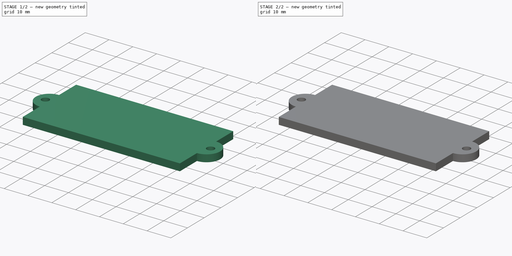
[diagram: build sequence overview — one tinted view per stage of 2, left to right]
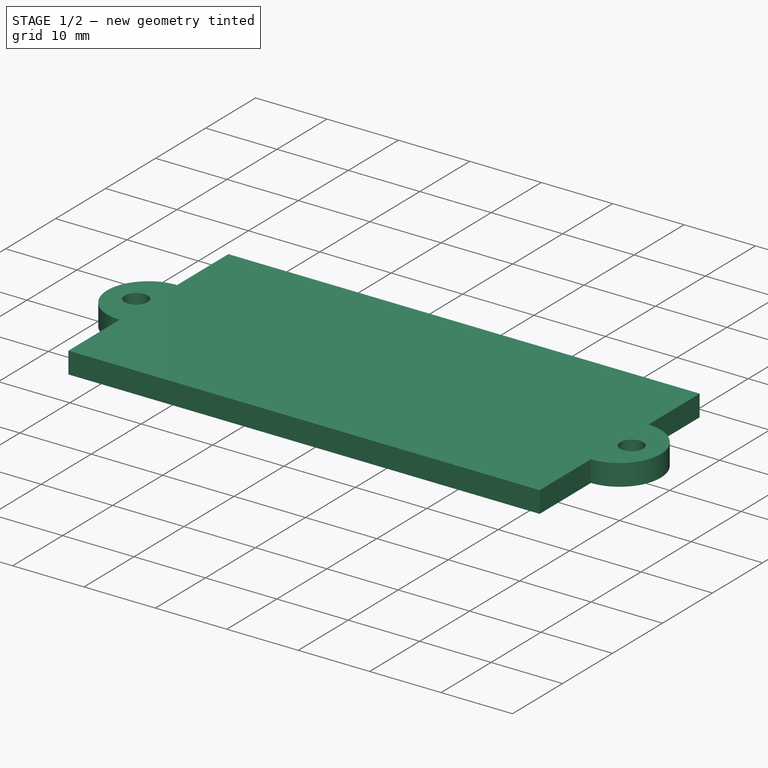
[diagram: stage 1 of 2 — iso view after this stage's code; geometry added in this stage tinted green]
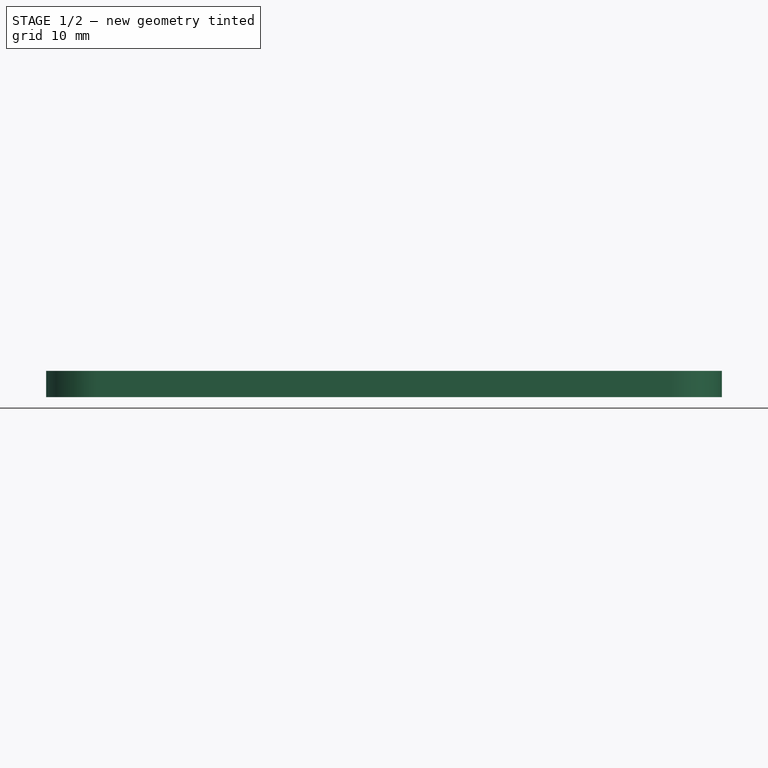
[diagram: stage 1 of 2 — front view after this stage's code; geometry added in this stage tinted green]
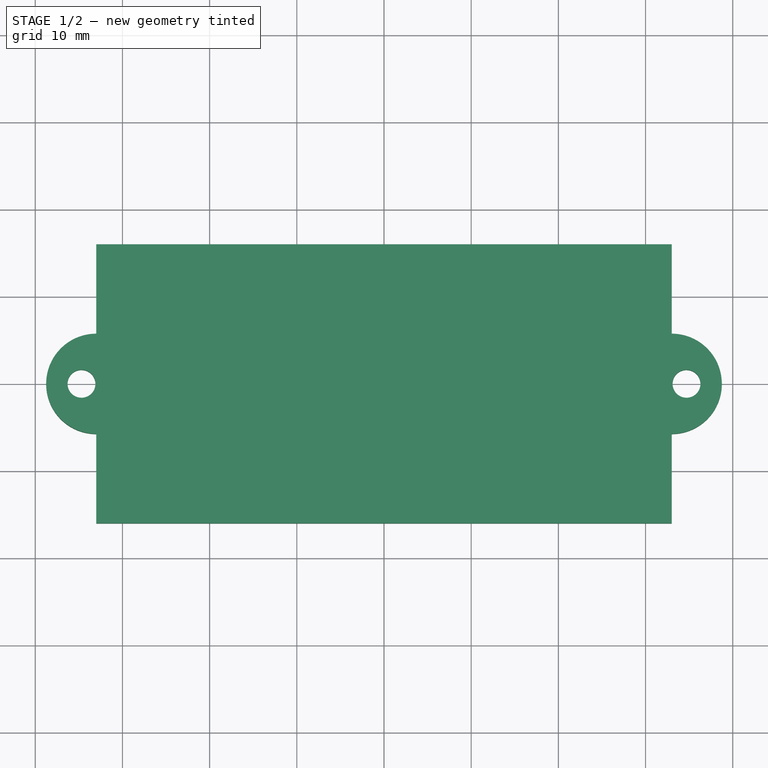
[diagram: stage 1 of 2 — top view after this stage's code; geometry added in this stage tinted green]
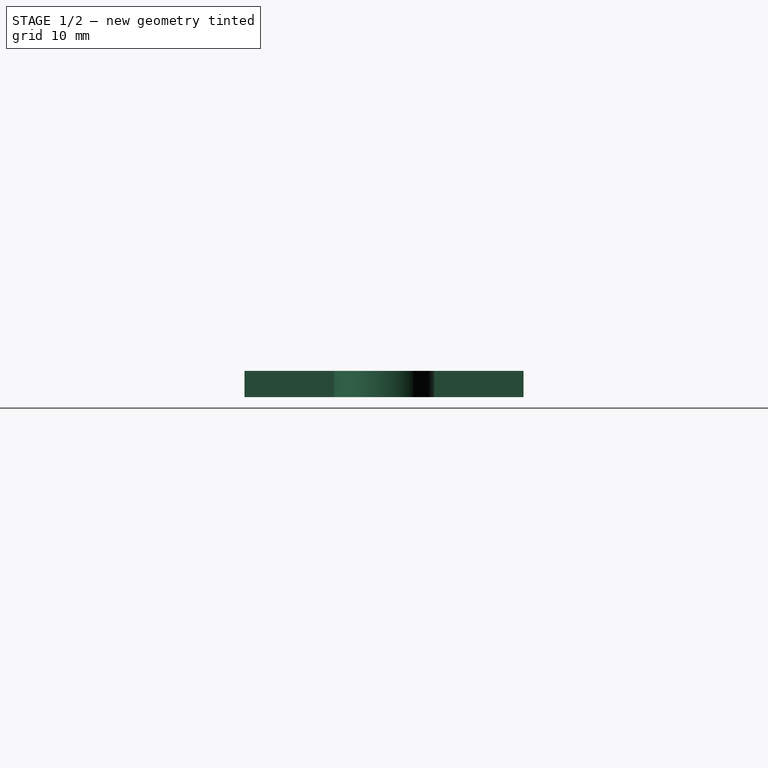
[diagram: stage 1 of 2 — right view after this stage's code; geometry added in this stage tinted green]
FCSTD DOCUMENT  (FreeCAD 0.20R29603 (Git))
Label: poklopac_zasebne kutije
License: All rights reserved
LicenseURL: http://en.wikipedia.org/wiki/All_rights_reserved
objects: Sketcher::SketchObject×2, PartDesign::Pad×1, PartDesign::Pocket×1, PartDesign::Body×1
note: 7 computed .brp shape members not serialized (recipe doc carries the construction recipe); baked Part::Feature solids carry a one-line shape summary decoded from their .brp

FEATURE [Sketcher::SketchObject] Sketch
  FullyConstrained = true
  MapMode = 5
  Support = -> [XY_Plane]
  sketch-geometry (12):
    g0: LineSegment StartX=-33 StartY=16 StartZ=0 EndX=33 EndY=16 EndZ=0
    g1: LineSegment StartX=33 StartY=16 StartZ=0 EndX=33 EndY=5.75 EndZ=0
    g2: LineSegment StartX=33 StartY=-16 StartZ=0 EndX=-33 EndY=-16 EndZ=0
    g3: LineSegment StartX=-33 StartY=-16 StartZ=0 EndX=-33 EndY=-5.75 EndZ=0
    g4: ArcOfCircle CenterX=-33 CenterY=0 CenterZ=0 NormalX=0 NormalY=0 NormalZ=1 AngleXU=0 Radius=5.75 StartAngle=1.5708 EndAngle=4.71239
    g5: ArcOfCircle CenterX=33 CenterY=0 CenterZ=0 NormalX=0 NormalY=0 NormalZ=1 AngleXU=0 Radius=5.75 StartAngle=4.71239 EndAngle=7.85398
    g6: Circle CenterX=-34.7 CenterY=0 CenterZ=0 NormalX=0 NormalY=0 NormalZ=1 AngleXU=0 Radius=1.6
    g7: Circle CenterX=34.7 CenterY=0 CenterZ=0 NormalX=0 NormalY=0 NormalZ=1 AngleXU=0 Radius=1.6
    g8: LineSegment StartX=-33 StartY=5.75 StartZ=0 EndX=-33 EndY=16 EndZ=0
    g9: LineSegment StartX=-33 StartY=-5.75 StartZ=0 EndX=-33 EndY=5.75 EndZ=0
    g10: LineSegment StartX=33 StartY=-5.75 StartZ=0 EndX=33 EndY=-16 EndZ=0
    g11: LineSegment StartX=33 StartY=5.75 StartZ=0 EndX=33 EndY=-5.75 EndZ=0
  constraints (35):
    c: Coincident(g0,g1)
    c: Coincident(g10,g2)
    c: Coincident(g2,g3)
    c: Coincident(g8,g0)
    c: Horizontal(g0)
    c: Vertical(g3)
    c: Symmetric(g2,g10,g-2)
    c: Symmetric(g10,g0,g-1)
    c: DistanceY(g10,g1) = 32
    c: DistanceX(g0,g0) = 66
    c: PointOnObject(g4,g-1)
    c: PointOnObject(g4,g3)
    c: Diameter(g4) = 11.5
    c: PointOnObject(g5,g-1)
    c: PointOnObject(g5,g1)
    c: Equal(g5,g4)
    c: PointOnObject(g6,g-1)
    c: PointOnObject(g7,g-1)
    c: Equal(g7,g6)
    c: Diameter(g6) = 3.2
    c: DistanceX(g6,g7) = 69.4
    c: DistanceX(g6,g0) = 1.7
    c: DistanceY(g4,g-1) = 5.75
    c: Coincident(g3,g4)
    c: Coincident(g8,g4)
    c: Vertical(g8)
    c: Coincident(g9,g3)
    c: Coincident(g9,g4)
    c: PointOnObject(g4,g9)
    c: Coincident(g1,g5)
    c: Coincident(g10,g5)
    c: Vertical(g1)
    c: Vertical(g10)
    c: Coincident(g11,g1)
    c: Coincident(g11,g5)
FEATURE [PartDesign::Pad] Pad
  Direction = (0,0,1)
  Length = 3
  Length2 = 10
  Profile = -> Sketch
  ReferenceAxis = -> Sketch [N_Axis]
  Type = 0
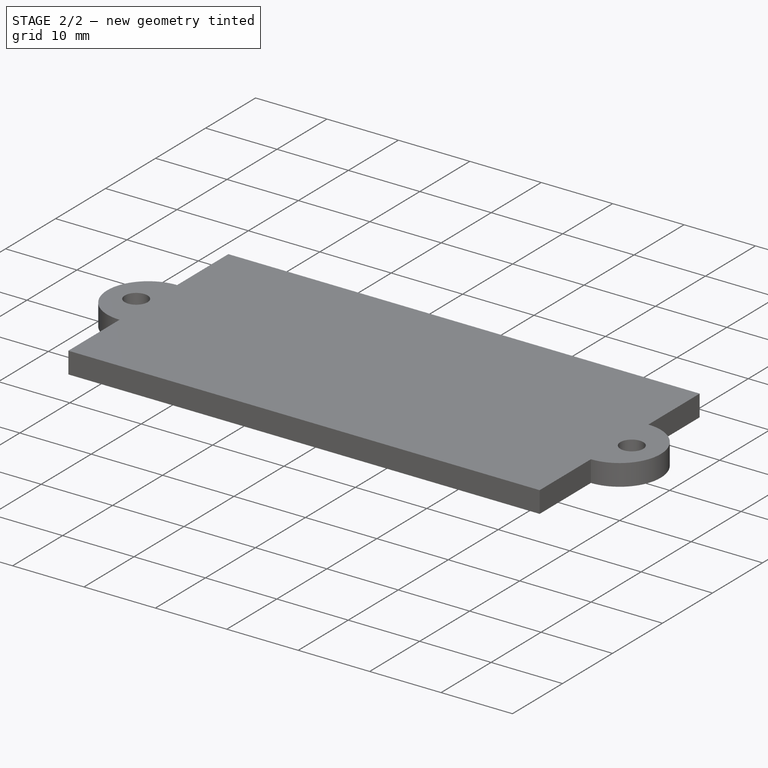
[diagram: stage 2 of 2 — iso view after this stage's code; geometry added in this stage tinted green]
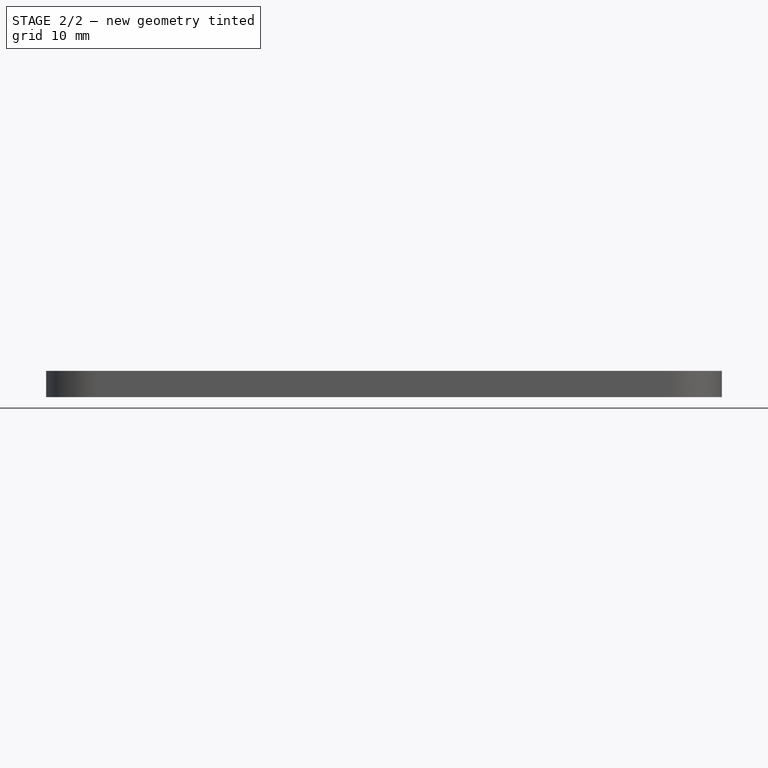
[diagram: stage 2 of 2 — front view after this stage's code; geometry added in this stage tinted green]
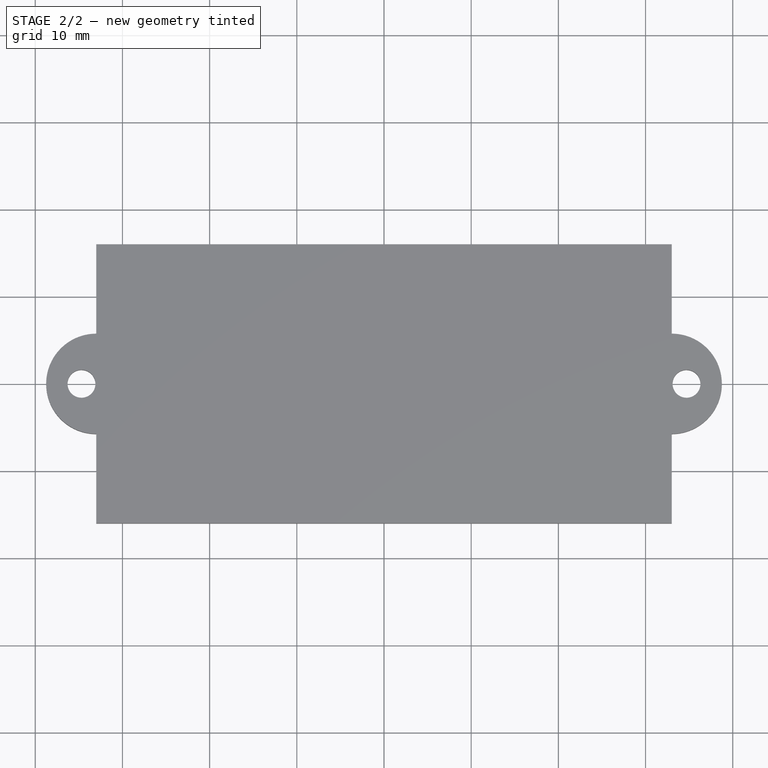
[diagram: stage 2 of 2 — top view after this stage's code; geometry added in this stage tinted green]
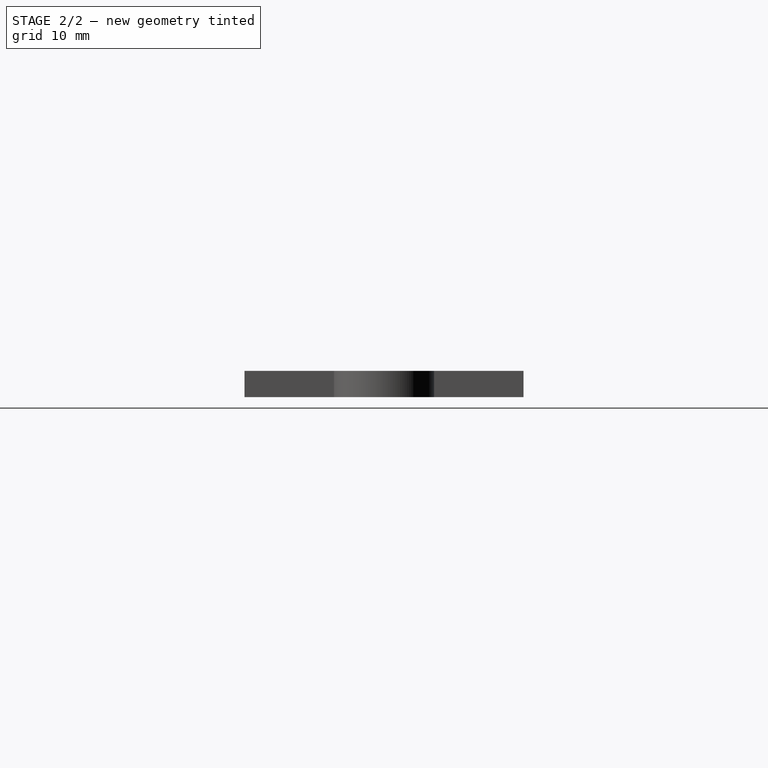
[diagram: stage 2 of 2 — right view after this stage's code; geometry added in this stage tinted green]
FEATURE [Sketcher::SketchObject] Sketch001
  FullyConstrained = true
  MapMode = 5
  Placement = pos=(0,0,0) rot=(1,0,0;3.14159rad)
  Support = -> [Pad]
  sketch-geometry (4):
    g0: LineSegment StartX=-32.1 StartY=15.1 StartZ=0 EndX=32.1 EndY=15.1 EndZ=0
    g1: LineSegment StartX=32.1 StartY=15.1 StartZ=0 EndX=32.1 EndY=-15.1 EndZ=0
    g2: LineSegment StartX=32.1 StartY=-15.1 StartZ=0 EndX=-32.1 EndY=-15.1 EndZ=0
    g3: LineSegment StartX=-32.1 StartY=-15.1 StartZ=0 EndX=-32.1 EndY=15.1 EndZ=0
  constraints (10):
    c: Coincident(g0,g1)
    c: Coincident(g1,g2)
    c: Coincident(g2,g3)
    c: Coincident(g3,g0)
    c: Horizontal(g0)
    c: Vertical(g3)
    c: Symmetric(g1,g2,g-2)
    c: Symmetric(g0,g1,g-1)
    c: DistanceX(g2,g2) = 64.2
    c: DistanceY(g1,g1) = 30.2
FEATURE [PartDesign::Pocket] Pocket
  BaseFeature = -> Pad
  Direction = (0,0,1)
  Length = 1.2
  Length2 = 5
  Profile = -> Sketch001
  ReferenceAxis = -> Sketch001 [N_Axis]
  Type = 0
FEATURE [PartDesign::Body] Body
  Group = -> [Sketch,Pad,Sketch001,Pocket]
  Origin = -> Origin
  Tip = -> Pocket
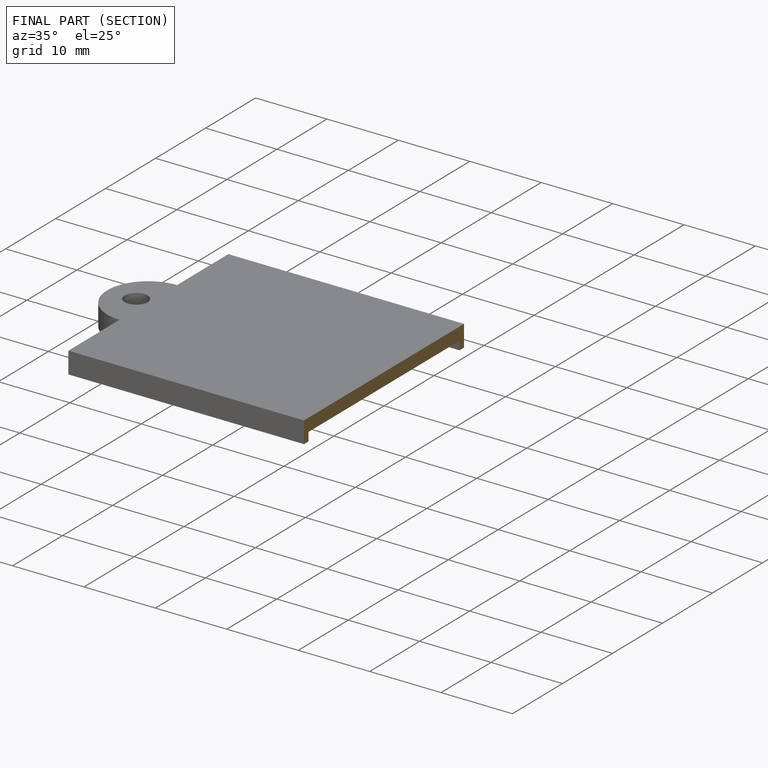
[diagram: finished part — half-section view (interior)]
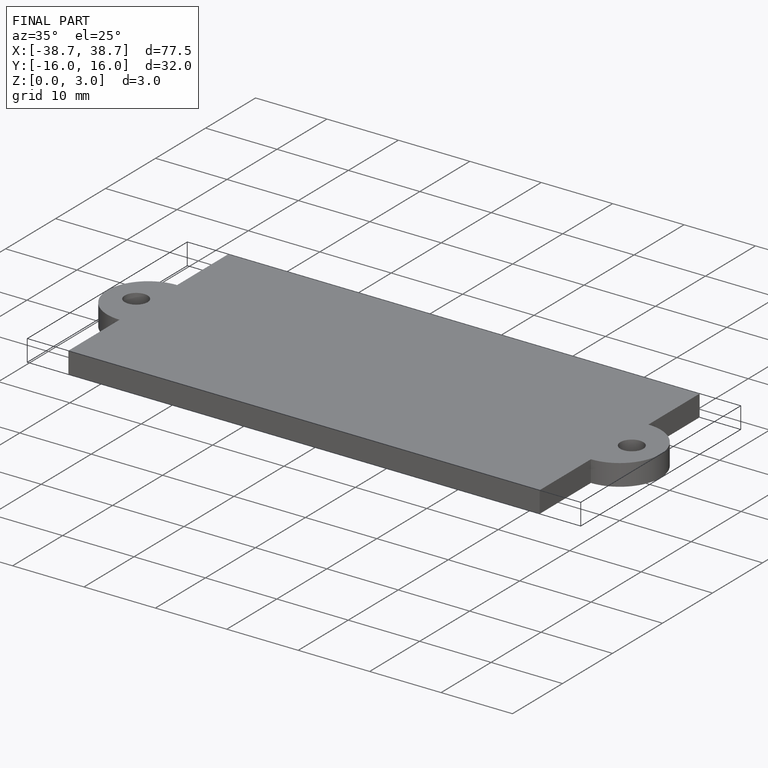
[diagram: finished part — iso view with bounding-box wireframe]
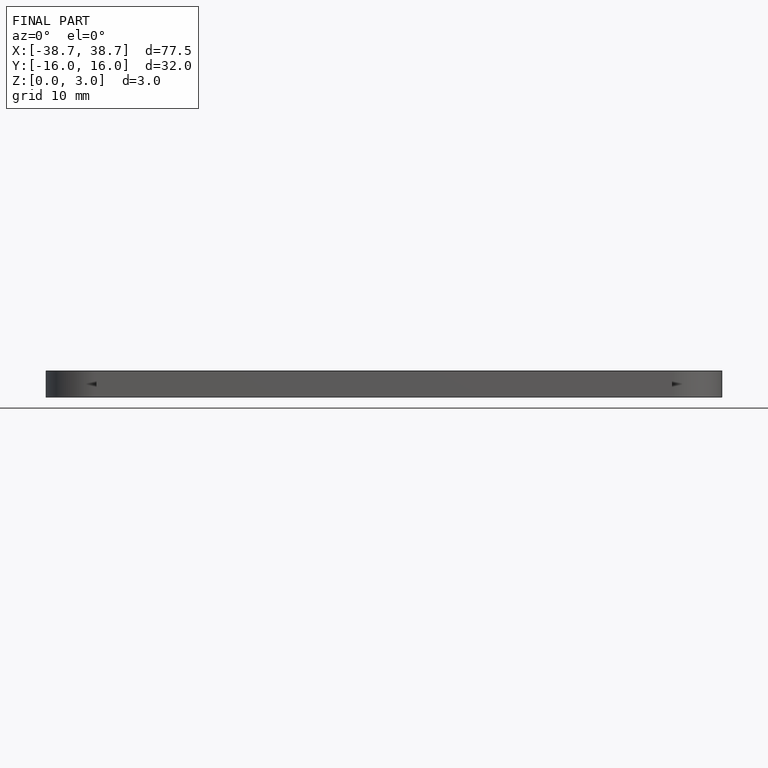
[diagram: finished part — front view with bounding-box wireframe]
